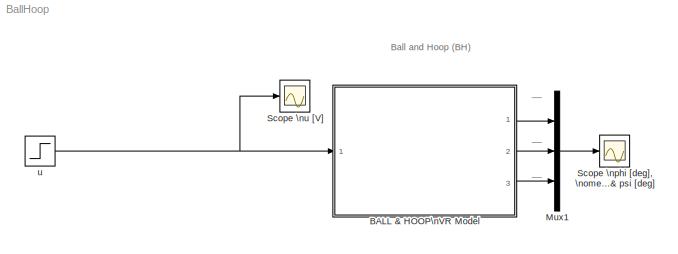
MODEL BallHoop
KIND model
CONFIG InitFcn = g = 9.81; %gravitational constant\n\n % showVR = 0; %show VR world\n%  psi_init = 0; %initial condition\n
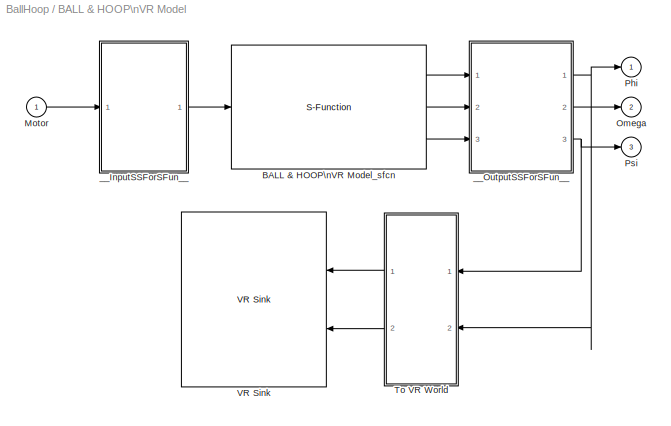
BLOCK [SubSystem] BALL & HOOP\nVR Model
  FunctionWithSeparateData = off
  MaskCallbackString = if strcmp('off',get_param(gcb,'showVR'))\n    vrclose all;\nelse\n    if exist('figureVR')==0\n        figureVR = vrfigure;\n    end  \n    if exist('worldVR')==0\n        worldVR = vrworld('BallHoop_VR.WRL');\n    end\n	if isvalid(figureVR)==0\n        open(worldVR);\n        figureVR = vrfigure(worldVR,[650 80 550 350]);\n	end\nend|
  MaskDescription = Ball and Hoop (BH) in laboratory K26 - Virtual Reality
  MaskDisplay = image(imread('BallHoop_Image.jpg'));\nport_label ('input',1,'u [V]');\nport_label ('output',1,'phi [deg]');\nport_label ('output',2,'omega [rot/min]');\nport_label ('output',3,'psi [deg]');
  MaskEnableString = on,on
  MaskHelp = Ball and Hoop in laboratory K26 - Virtual Reality. <br><br>\n\n\nThis is a virtual model of the Ball and Hoop apparatus in Laboratory of automatic control \ntheory&nbsp;26 (<a href=\"http://support.dce.felk.cvut.cz/lab26/\" target=\"_blank\">http://support.dce.felk.cvut.cz/lab26/</a>), \nwhich consists of a&nbsp;DC motor, a&nbsp;hoop and a&nbsp;ball. The&nbsp;hoop angular velocity is controlled \n...<+860ch>
  MaskHideContents = off
  MaskIconFrame = on
  MaskIconOpaque = on
  MaskIconRotate = none
  MaskIconUnits = autoscale
  MaskPromptString = Show VirtualWorld?|Initial angle of the ball   psi(0)  [deg]
  MaskStyleString = checkbox,edit
  MaskTabNameString = ,
  MaskToolTipString = on,on
  MaskTunableValueString = on,on
  MaskType = Ball and Hoop (BH) in laboratory K26
  MaskValueString = on|0
  MaskVarAliasString = ,
  MaskVariables = showVR=@1;sfcnParam1=@2;
  MaskVisibilityString = on,on
  MinAlgLoopOccurrences = off
  Ports = [1, 3]
  RTWSystemCode = Auto
BLOCK [S-Function] BALL & HOOP\nVR Model/BALL & HOOP\nVR Model_sfcn
  CopyFcn = set_param(gcb,'LinkStatus','none');
  FunctionName = BALL_sf
  MaskCallbackString = ||
  MaskDescription = Real-Time Workshop generated S-function.
  MaskDisplay = \nport_label('input',1,'Motor');\nport_label('output',1,'Phi');\nport_label('output',2,'Omega');\nport_label('output',3,'Psi');
  MaskEnableString = on,on,on
  MaskHelp = helpview([docroot,'<path>'],'rtw_Sfunc_target');
  MaskIconFrame = on
  MaskIconOpaque = on
  MaskIconRotate = none
  MaskIconUnits = autoscale
  MaskInitialization = displist = '';\nif ~strcmp(get_param(gcb, 'FunctionName'), rtw_sf_name);\n  set_param(gcb, 'FunctionName', rtw_sf_name);\nend\n% Check if we are generating RTW code\nrtw_mode = false;\nif strcmpi(get_param(bdroot(gcb),'SimulationStatus'),'Initializing')\n	rtw_mode = strcmpi(get_param(bdroot(gcb),'BuildingRTWCode'),'on') && ...\n		~strcmpi(get_param(bdroot(gcb),'TargetStyle'),'SimulationTarget');\n...<+297ch>
  MaskPromptString = Generated S-function name (model_sf):|Show module list|psi_init:
  MaskStyleString = edit,checkbox,edit
  MaskTabNameString = ,,
  MaskToolTipString = on,on,on
  MaskTunableValueString = on,on,on
  MaskValueString = BALL_sf|off|sfcnParam1
  MaskVarAliasString = ,,
  MaskVariables = rtw_sf_name=&1;showVar=@2;sfcnParam1=@3;
  MaskVisibilityString = on,on,on
  Parameters = sfcnParam1
  Ports = [1, 3]
BLOCK [Inport] BALL & HOOP\nVR Model/Motor
  IconDisplay = Port number
BLOCK [Outport] BALL & HOOP\nVR Model/Omega
  DataType = double
  IconDisplay = Port number
  Port = 2
  PortDimensions = 1
  SampleTime = [-1 0]
  SignalType = real
BLOCK [Outport] BALL & HOOP\nVR Model/Phi
  DataType = double
  IconDisplay = Port number
  PortDimensions = 1
  SampleTime = [-1 0]
  SignalType = real
BLOCK [Outport] BALL & HOOP\nVR Model/Psi
  DataType = double
  IconDisplay = Port number
  Port = 3
  PortDimensions = 1
  SampleTime = [-1 0]
  SignalType = real
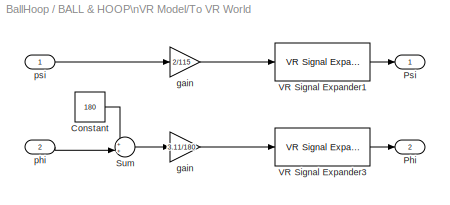
BLOCK [SubSystem] BALL & HOOP\nVR Model/To VR World
  FunctionWithSeparateData = off
  MaskHideContents = off
  MinAlgLoopOccurrences = off
  Ports = [2, 2]
  RTWSystemCode = Auto
BLOCK [Constant] BALL & HOOP\nVR Model/To VR World/Constant
  ConRadixGroup = Use specified scaling
  FramePeriod = inf
  OutDataType = sfix(16)
  OutDataTypeMode = Inherit from 'Constant value'
  OutScaling = 2^0
  SampleTime = inf
  SamplingMode = Sample based
  Value = 180
  VectorParams1D = on
BLOCK [Outport] BALL & HOOP\nVR Model/To VR World/Phi
  BusOutputAsStruct = off
  IconDisplay = Port number
  Port = 2
BLOCK [Outport] BALL & HOOP\nVR Model/To VR World/Psi
  BusOutputAsStruct = off
  IconDisplay = Port number
BLOCK [Sum] BALL & HOOP\nVR Model/To VR World/Sum
  IconShape = round
  InputSameDT = off
  Inputs = ++|
  OutDataTypeMode = Inherit via internal rule
  Ports = [2, 1]
  SaturateOnIntegerOverflow = off
BLOCK [Reference] BALL & HOOP\nVR Model/To VR World/VR Signal Expander1  REF=vrlib/VR Signal Expander
  FunctionWithSeparateData = off
  Ports = [1, 1]
  RTWMemSecDataConstants = Inherit from model
  RTWMemSecDataInternal = Inherit from model
  RTWMemSecDataParameters = Inherit from model
  RTWMemSecFuncExecute = Inherit from model
  RTWMemSecFuncInitTerm = Inherit from model
  ShowPortLabels = on
  SourceBlock = vrlib/VR Signal Expander
  SourceType = VR Signal Expander
  SystemSampleTime = -1
  outidx = [4]
  outwidth = 4
BLOCK [Reference] BALL & HOOP\nVR Model/To VR World/VR Signal Expander3  REF=vrlib/VR Signal Expander
  FunctionWithSeparateData = off
  Ports = [1, 1]
  RTWMemSecDataConstants = Inherit from model
  RTWMemSecDataInternal = Inherit from model
  RTWMemSecDataParameters = Inherit from model
  RTWMemSecFuncExecute = Inherit from model
  RTWMemSecFuncInitTerm = Inherit from model
  ShowPortLabels = on
  SourceBlock = vrlib/VR Signal Expander
  SourceType = VR Signal Expander
  SystemSampleTime = -1
  outidx = [4]
  outwidth = 4
BLOCK [Gain] BALL & HOOP\nVR Model/To VR World/gain
  Gain = 2/115
  OutDataTypeMode = Inherit via internal rule
  ParameterDataTypeMode = Inherit via internal rule
  SaturateOnIntegerOverflow = off
BLOCK [Gain] BALL & HOOP\nVR Model/To VR World/gain 
  Gain = 3.11/180
  OutDataTypeMode = Inherit via internal rule
  ParameterDataTypeMode = Inherit via internal rule
  SaturateOnIntegerOverflow = off
BLOCK [Inport] BALL & HOOP\nVR Model/To VR World/phi
  IconDisplay = Port number
  Port = 2
BLOCK [Inport] BALL & HOOP\nVR Model/To VR World/psi
  IconDisplay = Port number
BLOCK [Reference] BALL & HOOP\nVR Model/VR Sink  REF=vrlib/VR Sink
  AutoView = off
  FieldsWritten = Ball.rotation.4.1.double#Hoop.rotation.4.1.double
  FigureProperties = {}
  Ports = [2]
  RemoteChange = off
  RemoteView = on
  SampleTime = -1
  SourceBlock = vrlib/VR Sink
  SourceType = Virtual Reality Sink
  ViewEnable = on
  WorldFileName = BallHoop_VR.WRL
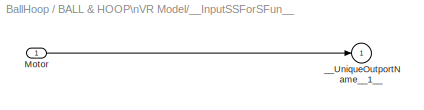
BLOCK [SubSystem] BALL & HOOP\nVR Model/__InputSSForSFun__
  FunctionWithSeparateData = off
  MaskHideContents = off
  MinAlgLoopOccurrences = off
  PermitHierarchicalResolution = ExplicitOnly
  Ports = [1, 1]
  RTWSystemCode = Auto
BLOCK [Inport] BALL & HOOP\nVR Model/__InputSSForSFun__/Motor
  IconDisplay = Port number
BLOCK [Outport] BALL & HOOP\nVR Model/__InputSSForSFun__/__UniqueOutportName__1__
  IconDisplay = Port number
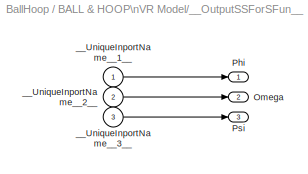
BLOCK [SubSystem] BALL & HOOP\nVR Model/__OutputSSForSFun__
  FunctionWithSeparateData = off
  MaskHideContents = off
  MinAlgLoopOccurrences = off
  PermitHierarchicalResolution = ExplicitOnly
  Ports = [3, 3]
  RTWSystemCode = Auto
BLOCK [Outport] BALL & HOOP\nVR Model/__OutputSSForSFun__/Omega
  DataType = double
  IconDisplay = Port number
  Port = 2
  PortDimensions = 1
  SampleTime = [-1 0]
  SignalType = real
BLOCK [Outport] BALL & HOOP\nVR Model/__OutputSSForSFun__/Phi
  DataType = double
  IconDisplay = Port number
  PortDimensions = 1
  SampleTime = [-1 0]
  SignalType = real
BLOCK [Outport] BALL & HOOP\nVR Model/__OutputSSForSFun__/Psi
  DataType = double
  IconDisplay = Port number
  Port = 3
  PortDimensions = 1
  SampleTime = [-1 0]
  SignalType = real
BLOCK [Inport] BALL & HOOP\nVR Model/__OutputSSForSFun__/__UniqueInportName__1__
  IconDisplay = Port number
BLOCK [Inport] BALL & HOOP\nVR Model/__OutputSSForSFun__/__UniqueInportName__2__
  IconDisplay = Port number
  Port = 2
BLOCK [Inport] BALL & HOOP\nVR Model/__OutputSSForSFun__/__UniqueInportName__3__
  IconDisplay = Port number
  Port = 3
BLOCK [Mux] Mux1
  DisplayOption = bar
  Inputs = 3
  Ports = [3, 1]
BLOCK [Scope] Scope \nphi [deg], \nomega [rot//min] \n& psi [deg]
  DataFormat = Array
  Floating = off
  MaxDataPoints = 500000
  NumInputPorts = 1
  Ports = [1]
  SampleTime = 0
  SaveName = ty
  SaveToWorkspace = on
  TimeRange = 10
  YMax = 100
  YMin = -100
BLOCK [Scope] Scope \nu [V]
  DataFormat = Array
  Floating = off
  MaxDataPoints = 500000
  NumInputPorts = 1
  Ports = [1]
  SampleTime = 0
  SaveName = tu
  SaveToWorkspace = on
  TimeRange = 10
  YMax = 10
  YMin = -10
BLOCK [Step] u
  After = 3
  Before = -3
  SampleTime = 0
  Time = 5
ANNOTATION (root): Ball and Hoop (BH)
ANNOTATION (root): __
LINE BALL & HOOP\nVR Model/BALL & HOOP\nVR Model_sfcn:1 -> BALL & HOOP\nVR Model/__OutputSSForSFun__:1
LINE BALL & HOOP\nVR Model/BALL & HOOP\nVR Model_sfcn:2 -> BALL & HOOP\nVR Model/__OutputSSForSFun__:2
LINE BALL & HOOP\nVR Model/BALL & HOOP\nVR Model_sfcn:3 -> BALL & HOOP\nVR Model/__OutputSSForSFun__:3
LINE BALL & HOOP\nVR Model/Motor:1 -> BALL & HOOP\nVR Model/__InputSSForSFun__:1
LINE BALL & HOOP\nVR Model/To VR World/Constant:1 -> BALL & HOOP\nVR Model/To VR World/Sum:1
LINE BALL & HOOP\nVR Model/To VR World/Sum:1 -> BALL & HOOP\nVR Model/To VR World/gain :1
LINE BALL & HOOP\nVR Model/To VR World/VR Signal Expander1:1 -> BALL & HOOP\nVR Model/To VR World/Psi:1
LINE BALL & HOOP\nVR Model/To VR World/VR Signal Expander3:1 -> BALL & HOOP\nVR Model/To VR World/Phi:1
LINE BALL & HOOP\nVR Model/To VR World/gain :1 -> BALL & HOOP\nVR Model/To VR World/VR Signal Expander3:1
LINE BALL & HOOP\nVR Model/To VR World/gain:1 -> BALL & HOOP\nVR Model/To VR World/VR Signal Expander1:1
LINE BALL & HOOP\nVR Model/To VR World/phi:1 -> BALL & HOOP\nVR Model/To VR World/Sum:2
LINE BALL & HOOP\nVR Model/To VR World/psi:1 -> BALL & HOOP\nVR Model/To VR World/gain:1
LINE BALL & HOOP\nVR Model/To VR World:1 -> BALL & HOOP\nVR Model/VR Sink:1
LINE BALL & HOOP\nVR Model/To VR World:2 -> BALL & HOOP\nVR Model/VR Sink:2
LINE BALL & HOOP\nVR Model/__InputSSForSFun__/Motor:1 -> BALL & HOOP\nVR Model/__InputSSForSFun__/__UniqueOutportName__1__:1
LINE BALL & HOOP\nVR Model/__InputSSForSFun__:1 -> BALL & HOOP\nVR Model/BALL & HOOP\nVR Model_sfcn:1
LINE BALL & HOOP\nVR Model/__OutputSSForSFun__/__UniqueInportName__1__:1 -> BALL & HOOP\nVR Model/__OutputSSForSFun__/Phi:1
LINE BALL & HOOP\nVR Model/__OutputSSForSFun__/__UniqueInportName__2__:1 -> BALL & HOOP\nVR Model/__OutputSSForSFun__/Omega:1
LINE BALL & HOOP\nVR Model/__OutputSSForSFun__/__UniqueInportName__3__:1 -> BALL & HOOP\nVR Model/__OutputSSForSFun__/Psi:1
NET BALL & HOOP\nVR Model/__OutputSSForSFun__:1 -> BALL & HOOP\nVR Model/Phi:1, BALL & HOOP\nVR Model/To VR World:2
LINE BALL & HOOP\nVR Model/__OutputSSForSFun__:2 -> BALL & HOOP\nVR Model/Omega:1
NET BALL & HOOP\nVR Model/__OutputSSForSFun__:3 -> BALL & HOOP\nVR Model/Psi:1, BALL & HOOP\nVR Model/To VR World:1
LINE BALL & HOOP\nVR Model:1 -> Mux1:1
LINE BALL & HOOP\nVR Model:2 -> Mux1:2
LINE BALL & HOOP\nVR Model:3 -> Mux1:3
LINE Mux1:1 -> Scope \nphi [deg], \nomega [rot//min] \n& psi [deg]:1
NET u:1 -> BALL & HOOP\nVR Model:1, Scope \nu [V]:1
note: NET lines group one-source signal fan-out (src -> all destinations, sorted); 1:1 wires keep LINE
note: 1 file-system path scrubbed to <path> (not preserved elsewhere — flat text is the only slx artifact)
